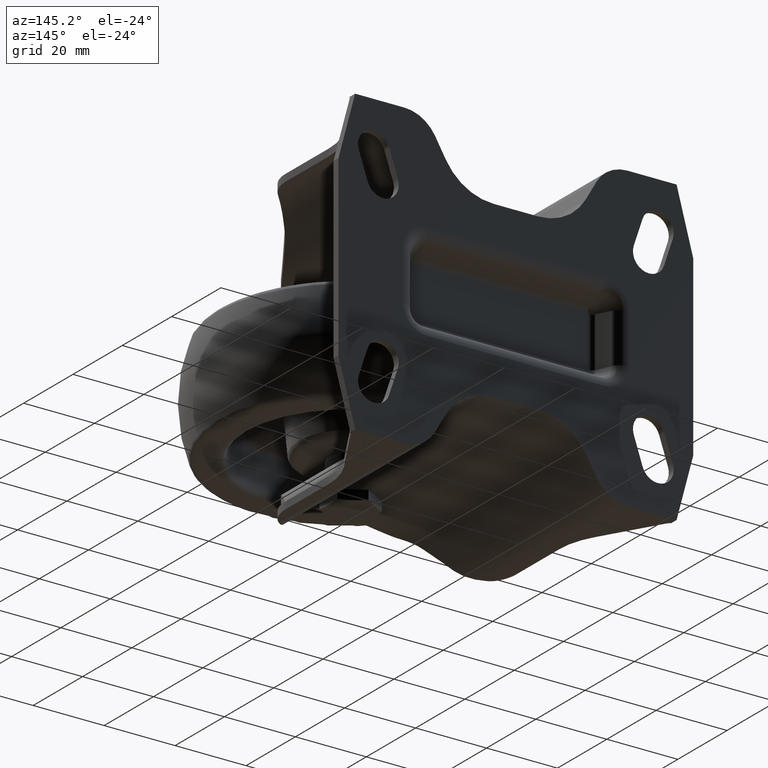
[diagram: clean part render]
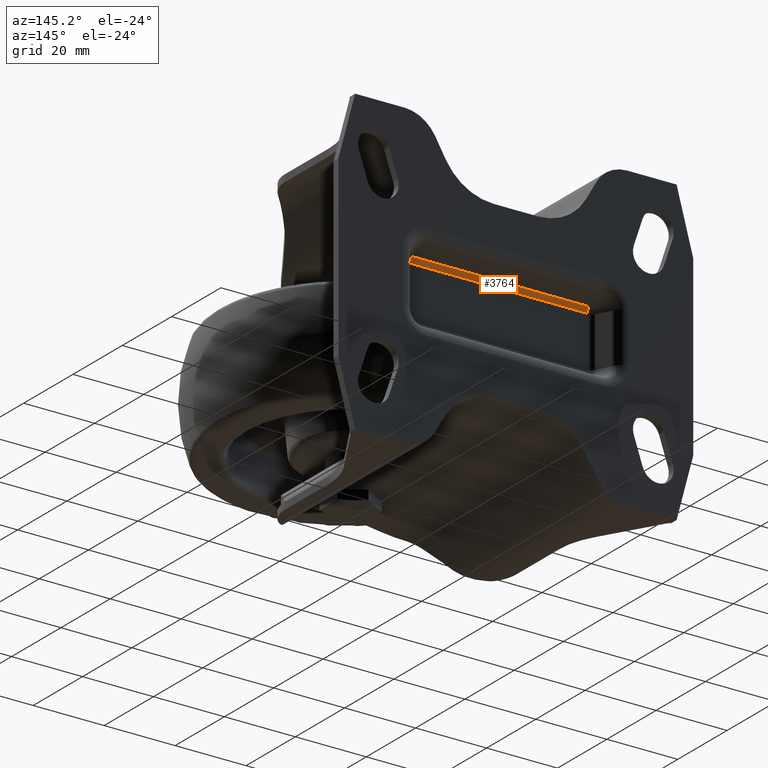
[diagram: same view with one face highlighted and labeled with its STEP entity id]
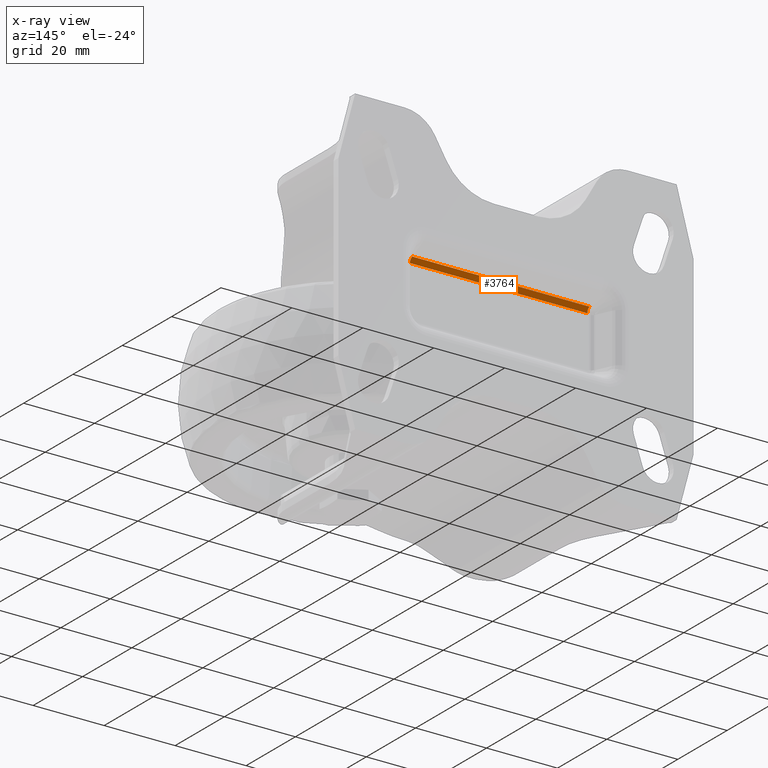
[diagram: x-ray of the same camera — body ghosted, the highlighted face saturated]
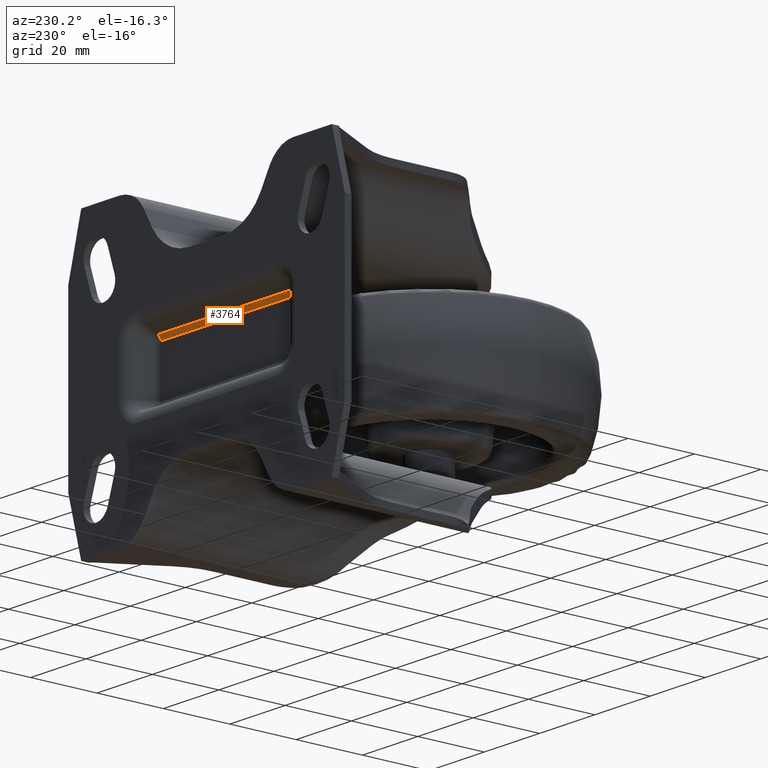
[diagram: same view with one face highlighted and labeled with its STEP entity id]
A machine part, auxiliary view. The second image highlights one B-rep face of the part: STEP entity #3764.
The next image is the same camera in x-ray: the body ghosted, the highlighted face saturated — about 0% of this face is hidden behind the body in this view.
A second angle (auxiliary view) of the same face is appended — the face is thin or edge-on in the first view.
In plain terms, the highlighted cylindrical surface (edge-blend (fillet) strip) has radius 1.5 mm, axis along (-1, 0, 0).
Its self-contained STEP definition (entity closure, byte-faithful):
#494=LINE('',#6742,#754);
#495=LINE('',#6748,#755);
#754=VECTOR('',#5254,1000.);
#755=VECTOR('',#5261,1000.);
#843=CYLINDRICAL_SURFACE('',#4248,1.50000000000003);
#1026=FACE_OUTER_BOUND('',#1267,.T.);
#1267=EDGE_LOOP('',(#3366,#3367,#3368,#3369));
#1432=CIRCLE('',#4249,1.50000000000003);
#1433=CIRCLE('',#4250,1.50000000000003);
#1845=VERTEX_POINT('',#6738);
#1846=VERTEX_POINT('',#6740);
#1847=VERTEX_POINT('',#6744);
#1848=VERTEX_POINT('',#6746);
#2359=EDGE_CURVE('',#1846,#1845,#494,.T.);
#2360=EDGE_CURVE('',#1845,#1847,#1432,.T.);
#2361=EDGE_CURVE('',#1846,#1848,#1433,.T.);
#2362=EDGE_CURVE('',#1848,#1847,#495,.T.);
#3366=ORIENTED_EDGE('',*,*,#2360,.F.);
#3367=ORIENTED_EDGE('',*,*,#2359,.F.);
#3368=ORIENTED_EDGE('',*,*,#2361,.T.);
#3369=ORIENTED_EDGE('',*,*,#2362,.T.);
#3764=ADVANCED_FACE('',(#1026),#843,.F.);
#4248=AXIS2_PLACEMENT_3D('',#6743,#5255,#5256);
#4249=AXIS2_PLACEMENT_3D('',#6745,#5257,#5258);
#4250=AXIS2_PLACEMENT_3D('',#6747,#5259,#5260);
#5254=DIRECTION('',(-1.,0.,0.));
#5255=DIRECTION('center_axis',(-1.,0.,0.));
#5256=DIRECTION('ref_axis',(0.,0.,1.));
#5257=DIRECTION('center_axis',(1.,0.,0.));
#5258=DIRECTION('ref_axis',(0.,0.,-1.));
#5259=DIRECTION('center_axis',(1.,0.,0.));
#5260=DIRECTION('ref_axis',(0.,0.,-1.));
#5261=DIRECTION('',(-1.,0.,0.));
#6738=CARTESIAN_POINT('',(-25.,60.866072607389,8.63970268225874));
#6740=CARTESIAN_POINT('',(25.,60.866072607389,8.63970268225874));
#6742=CARTESIAN_POINT('',(25.,60.866072607389,8.63970268225874));
#6743=CARTESIAN_POINT('Origin',(25.,61.5,7.28024100170375));
#6744=CARTESIAN_POINT('',(-25.,60.,7.28024100170377));
#6745=CARTESIAN_POINT('Origin',(-25.,61.5,7.28024100170375));
#6746=CARTESIAN_POINT('',(25.,60.,7.28024100170377));
#6747=CARTESIAN_POINT('Origin',(25.,61.5,7.28024100170375));
#6748=CARTESIAN_POINT('',(25.,60.,7.28024100170377));